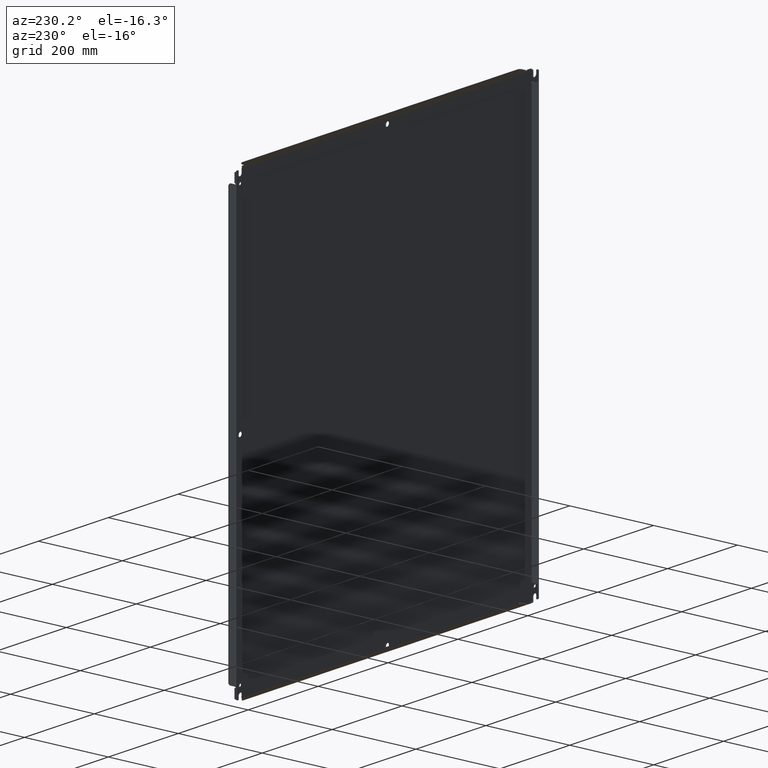
[diagram: clean part render]
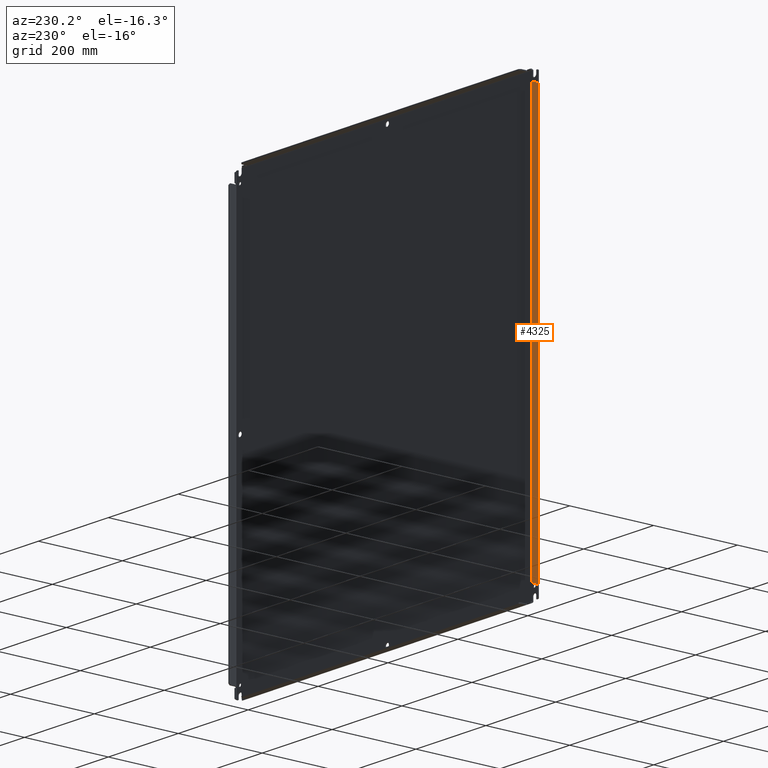
[diagram: same view with one face highlighted and labeled with its STEP entity id]
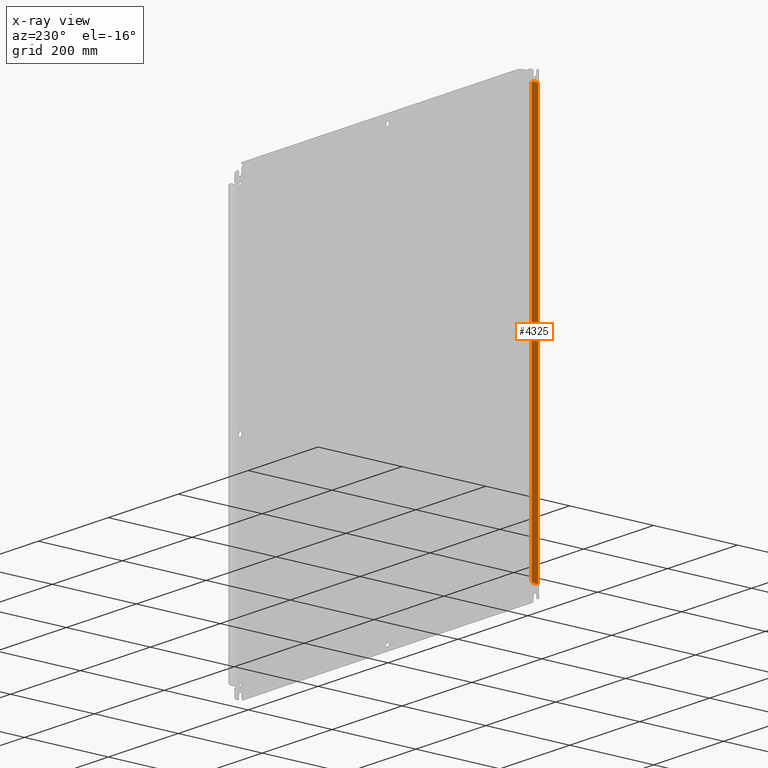
[diagram: x-ray of the same camera — body ghosted, the highlighted face saturated]
A machine part, auxiliary view. The second image highlights one B-rep face of the part: STEP entity #4325.
The next image is the same camera in x-ray: the body ghosted, the highlighted face saturated — about 0% of this face is hidden behind the body in this view.
In plain terms, the highlighted planar face has unit normal (1, 0, -0).
Its self-contained STEP definition (entity closure, byte-faithful):
#201 = DIRECTION ( 'NONE',  ( 1.000000000000000000, 6.123031769111889989E-17, 0.0000000000000000000 ) ) ;
#353 = VERTEX_POINT ( 'NONE', #5315 ) ;
#460 = EDGE_CURVE ( 'NONE', #353, #2871, #3183, .T. ) ;
#526 = EDGE_CURVE ( 'NONE', #702, #1695, #1308, .T. ) ;
#564 = EDGE_CURVE ( 'NONE', #2378, #3747, #7362, .T. ) ;
#702 = VERTEX_POINT ( 'NONE', #938 ) ;
#718 = EDGE_CURVE ( 'NONE', #4460, #353, #2407, .T. ) ;
#938 = CARTESIAN_POINT ( 'NONE',  ( -17.08500000000000085, 0.7499999999999995559, 18.72500000000000142 ) ) ;
#1035 = DIRECTION ( 'NONE',  ( 0.0000000000000000000, -0.7071067811865474617, -0.7071067811865474617 ) ) ;
#1038 = CARTESIAN_POINT ( 'NONE',  ( -17.08500000000000085, 0.6249999999999952260, -18.85000000000000142 ) ) ;
#1170 = EDGE_CURVE ( 'NONE', #3747, #2113, #3233, .T. ) ;
#1287 = ORIENTED_EDGE ( 'NONE', *, *, #2465, .T. ) ;
#1308 = LINE ( 'NONE', #7354, #4307 ) ;
#1571 = ORIENTED_EDGE ( 'NONE', *, *, #7838, .F. ) ;
#1599 = CARTESIAN_POINT ( 'NONE',  ( -17.08500000000000085, 0.7500000000000001110, 18.85000000000000142 ) ) ;
#1686 = EDGE_CURVE ( 'NONE', #2113, #702, #2184, .T. ) ;
#1691 = CARTESIAN_POINT ( 'NONE',  ( -17.08500000000000085, 0.1429999999999984339, 18.85656419576191922 ) ) ;
#1695 = VERTEX_POINT ( 'NONE', #3906 ) ;
#1770 = ORIENTED_EDGE ( 'NONE', *, *, #526, .T. ) ;
#1850 = CARTESIAN_POINT ( 'NONE',  ( -17.08500000000000085, 0.1710000000000005127, 18.85000000000000142 ) ) ;
#1859 = VECTOR ( 'NONE', #6031, 39.37007874015748143 ) ;
#2113 = VERTEX_POINT ( 'NONE', #7761 ) ;
#2147 = CARTESIAN_POINT ( 'NONE',  ( -17.08500000000000085, 0.7500000000000001110, -18.72500000000000142 ) ) ;
#2184 = LINE ( 'NONE', #6425, #3616 ) ;
#2378 = VERTEX_POINT ( 'NONE', #1691 ) ;
#2407 = LINE ( 'NONE', #4726, #1859 ) ;
#2430 = CARTESIAN_POINT ( 'NONE',  ( -17.08500000000000085, 0.1710000000000010123, -18.91300000000000026 ) ) ;
#2465 = EDGE_CURVE ( 'NONE', #1695, #4460, #7052, .T. ) ;
#2508 = FACE_OUTER_BOUND ( 'NONE', #3989, .T. ) ;
#2630 = PLANE ( 'NONE',  #7393 ) ;
#2808 = ORIENTED_EDGE ( 'NONE', *, *, #718, .T. ) ;
#2871 = VERTEX_POINT ( 'NONE', #4829 ) ;
#3183 = CIRCLE ( 'NONE', #5130, 0.06300000000000001432 ) ;
#3217 = CARTESIAN_POINT ( 'NONE',  ( -17.08500000000000085, 0.1710000000000010123, 18.91300000000000026 ) ) ;
#3233 = LINE ( 'NONE', #1599, #6567 ) ;
#3336 = DIRECTION ( 'NONE',  ( 0.0000000000000000000, 0.7071067811865540120, -0.7071067811865410224 ) ) ;
#3605 = DIRECTION ( 'NONE',  ( 0.0000000000000000000, 1.000000000000000000, 0.0000000000000000000 ) ) ;
#3616 = VECTOR ( 'NONE', #3336, 39.37007874015748143 ) ;
#3747 = VERTEX_POINT ( 'NONE', #1850 ) ;
#3906 = CARTESIAN_POINT ( 'NONE',  ( -17.08500000000000085, 0.7499999999999998890, -18.72500000000000142 ) ) ;
#3969 = DIRECTION ( 'NONE',  ( 1.000000000000000000, 6.123031769111889989E-17, -0.0000000000000000000 ) ) ;
#3985 = DIRECTION ( 'NONE',  ( 0.0000000000000000000, 1.000000000000000000, 0.0000000000000000000 ) ) ;
#3989 = EDGE_LOOP ( 'NONE', ( #5541, #5415, #7280, #1770, #1287, #2808, #7171, #1571 ) ) ;
#4307 = VECTOR ( 'NONE', #4412, 39.37007874015748143 ) ;
#4325 = ADVANCED_FACE ( 'NONE', ( #2508 ), #2630, .F. ) ;
#4342 = CARTESIAN_POINT ( 'NONE',  ( -17.08500000000000085, 0.1430000000000000437, 19.88800000000000168 ) ) ;
#4412 = DIRECTION ( 'NONE',  ( -3.237938841190640136E-33, 5.288130069036510920E-17, -1.000000000000000000 ) ) ;
#4460 = VERTEX_POINT ( 'NONE', #1038 ) ;
#4535 = DIRECTION ( 'NONE',  ( -6.123031769111889989E-17, 1.000000000000000000, 0.0000000000000000000 ) ) ;
#4726 = CARTESIAN_POINT ( 'NONE',  ( -17.08500000000000085, 0.1710000000000043430, -18.85000000000000142 ) ) ;
#4829 = CARTESIAN_POINT ( 'NONE',  ( -17.08500000000000085, 0.1429999999999979621, -18.85656419576191922 ) ) ;
#5026 = LINE ( 'NONE', #4342, #5397 ) ;
#5130 = AXIS2_PLACEMENT_3D ( 'NONE', #2430, #5430, #3605 ) ;
#5155 = CARTESIAN_POINT ( 'NONE',  ( -17.08500000000000085, 0.7500000000000001110, 20.66399999999999793 ) ) ;
#5315 = CARTESIAN_POINT ( 'NONE',  ( -17.08500000000000085, 0.1710000000000005127, -18.85000000000000142 ) ) ;
#5397 = VECTOR ( 'NONE', #5664, 39.37007874015748143 ) ;
#5415 = ORIENTED_EDGE ( 'NONE', *, *, #1170, .T. ) ;
#5430 = DIRECTION ( 'NONE',  ( 1.000000000000000000, 6.123031769111889989E-17, 0.0000000000000000000 ) ) ;
#5541 = ORIENTED_EDGE ( 'NONE', *, *, #564, .T. ) ;
#5664 = DIRECTION ( 'NONE',  ( 0.0000000000000000000, 0.0000000000000000000, -1.000000000000000000 ) ) ;
#6031 = DIRECTION ( 'NONE',  ( 0.0000000000000000000, -1.000000000000000000, -0.0000000000000000000 ) ) ;
#6425 = CARTESIAN_POINT ( 'NONE',  ( -17.08500000000000085, 0.6249999999999983347, 18.85000000000000142 ) ) ;
#6567 = VECTOR ( 'NONE', #3985, 39.37007874015748143 ) ;
#6922 = DIRECTION ( 'NONE',  ( 0.0000000000000000000, 1.000000000000000000, 0.0000000000000000000 ) ) ;
#6930 = AXIS2_PLACEMENT_3D ( 'NONE', #3217, #201, #6922 ) ;
#7052 = LINE ( 'NONE', #2147, #7435 ) ;
#7171 = ORIENTED_EDGE ( 'NONE', *, *, #460, .T. ) ;
#7280 = ORIENTED_EDGE ( 'NONE', *, *, #1686, .T. ) ;
#7354 = CARTESIAN_POINT ( 'NONE',  ( -17.08500000000000085, 0.7500000000000001110, -20.66399999999999793 ) ) ;
#7362 = CIRCLE ( 'NONE', #6930, 0.06300000000000001432 ) ;
#7393 = AXIS2_PLACEMENT_3D ( 'NONE', #5155, #3969, #4535 ) ;
#7435 = VECTOR ( 'NONE', #1035, 39.37007874015748854 ) ;
#7761 = CARTESIAN_POINT ( 'NONE',  ( -17.08500000000000085, 0.6249999999999993339, 18.85000000000000142 ) ) ;
#7838 = EDGE_CURVE ( 'NONE', #2378, #2871, #5026, .T. ) ;